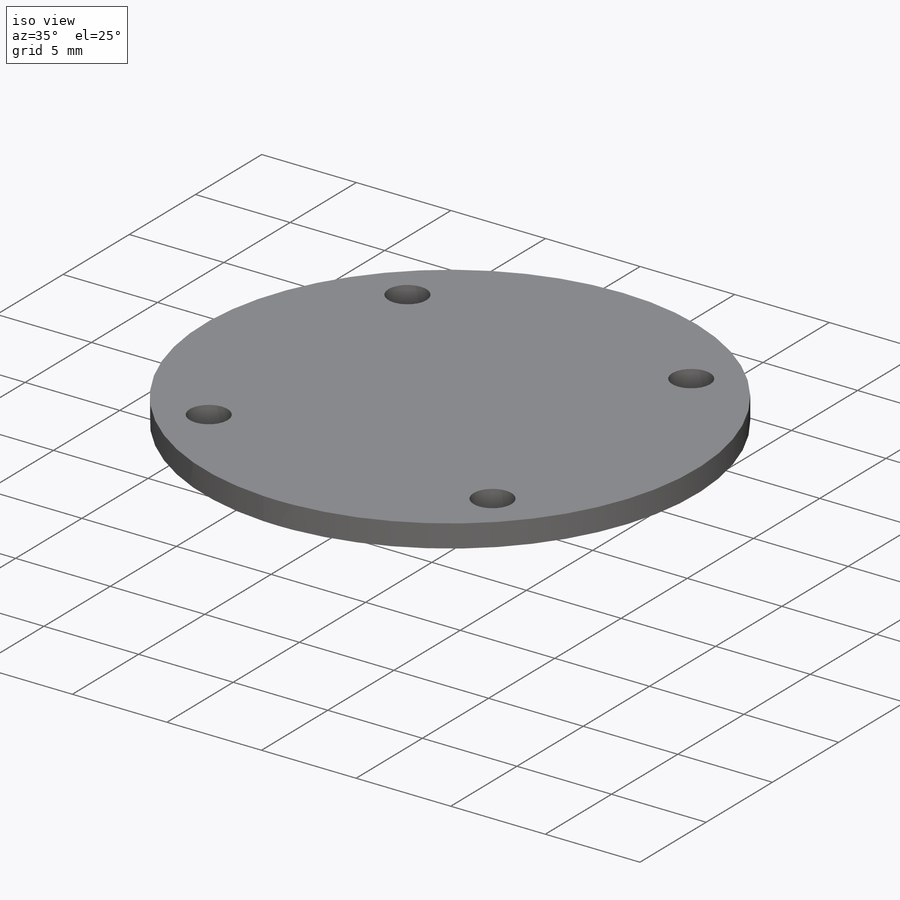
[diagram: iso view]
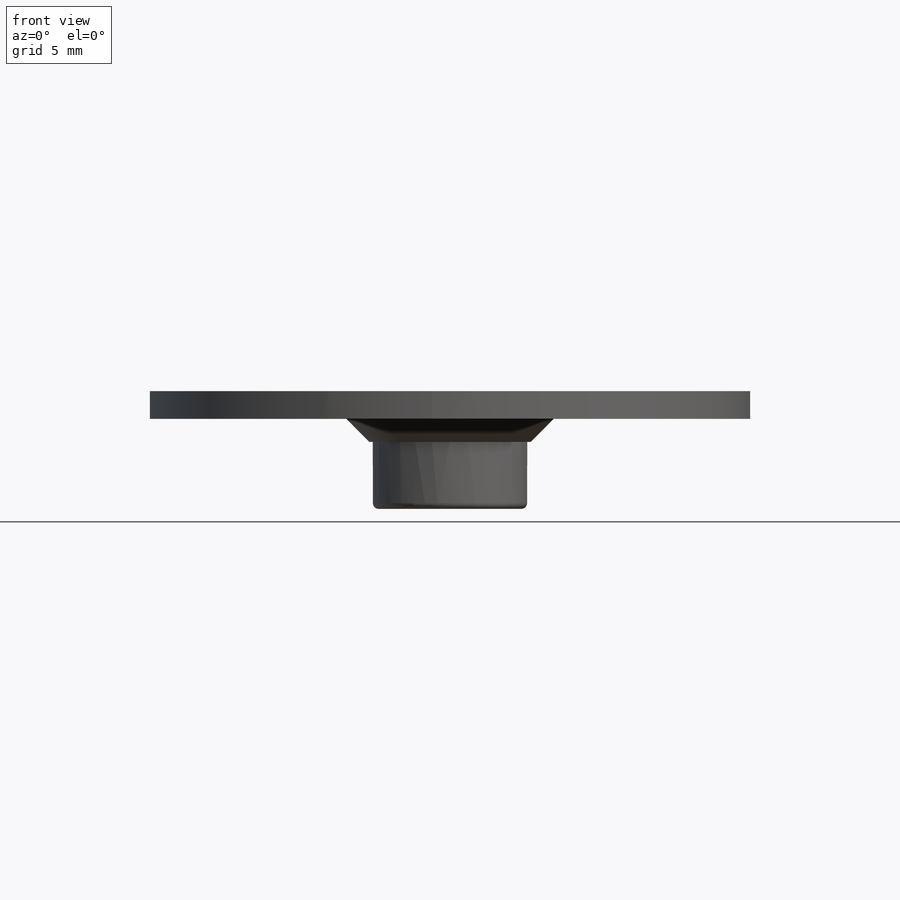
[diagram: front view]
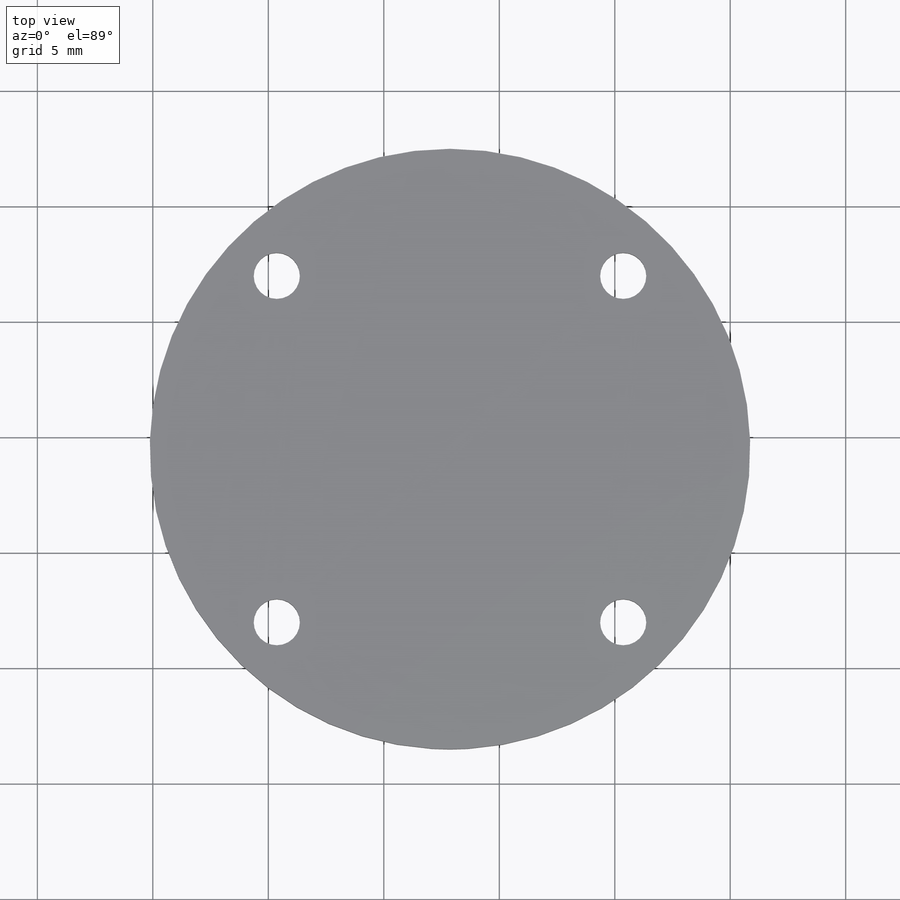
[diagram: top view]
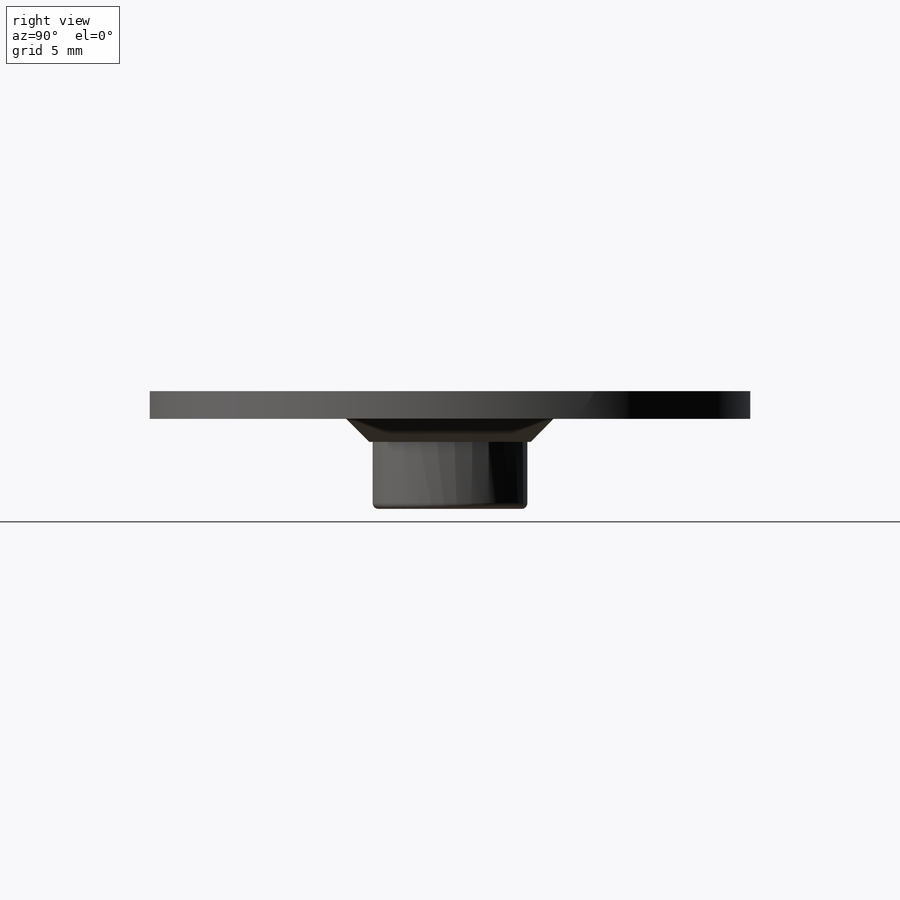
[diagram: right view]
SOLIDWORKS PART (.sldprt)
format: sldprt  version: not decoded by parser v0  size: 176,128 bytes
history: native  units: mm
features: plane x3, sketch x3, extrude x3, fillet x2, material x1, chamfer x1 (+10 scaffold rows collapsed)
feature tree (23):
  scaffold x10  (default folders/planes/origin — collapsed)
  material  "PF"
  plane  "Alzado"
  plane  "Planta"
  plane  "Vista lateral"
  sketch  "Croquis1"  dims[D1=15.0mm]
  extrude  "Saliente-Extruir1"  Depth=1.2mm
  sketch  "Croquis2"  dims[D1=~2.862042mm]
  extrude  "Saliente-Extruir2"  Depth=1mm
  sketch  "Croquis3"  dims[D1=~2.075519mm]
  extrude  "Saliente-Extruir3"  Depth=2.9mm
  fillet  "Redondeo1"  Radius=0.25mm
  fillet  "Redondeo2"  Radius=0.25mm
  chamfer  "Chaflán1"  Distance=1mm Angle=45deg
decode coverage: 9 of 9 modeling features carry decoded parameters
note: ~ marks probable driven/reference dimensions
note: suppression state not decoded; provenance and decode notes live in map.json
